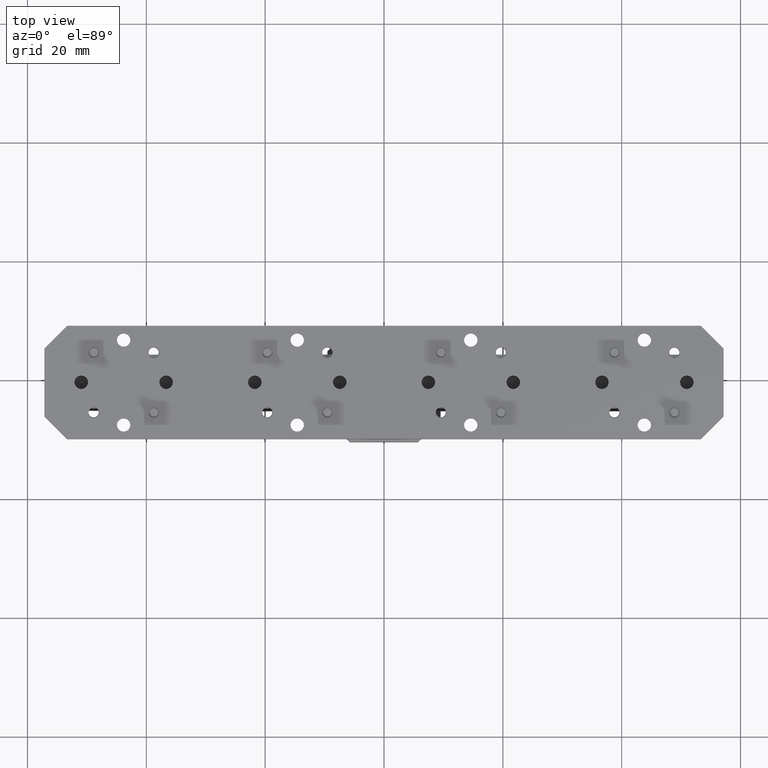
[diagram: clean part render]
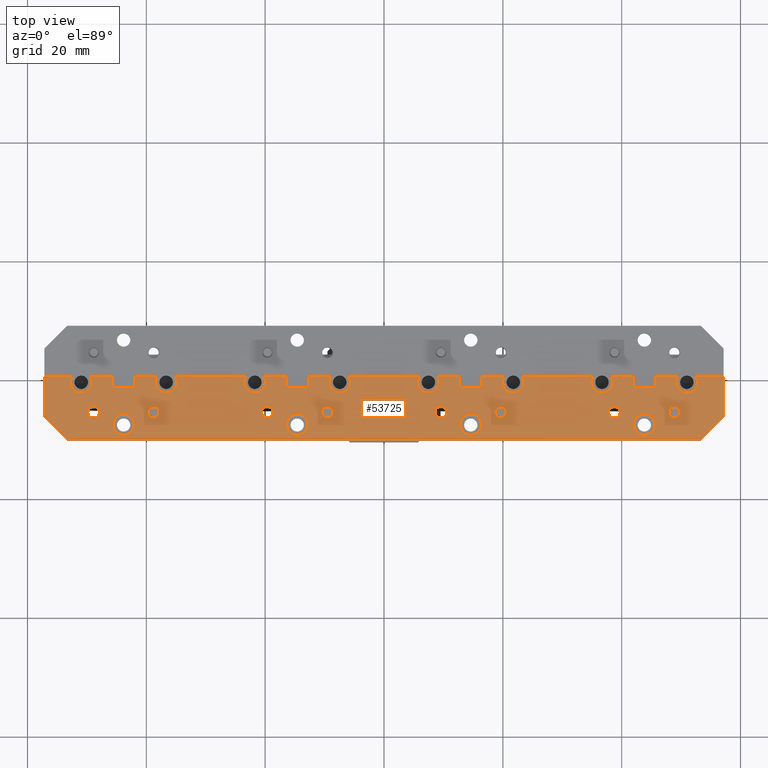
[diagram: same view with one face highlighted and labeled with its STEP entity id]
A machine part, top view. The second image highlights one B-rep face of the part: STEP entity #53725.
In plain terms, the highlighted planar face has unit normal (0, 0, -1).
Its self-contained STEP definition (entity closure, byte-faithful):
#285 = VERTEX_POINT ( 'NONE', #49331 ) ;
#674 = ORIENTED_EDGE ( 'NONE', *, *, #63357, .F. ) ;
#1216 = EDGE_CURVE ( 'NONE', #46304, #43998, #22321, .T. ) ;
#1408 = EDGE_LOOP ( 'NONE', ( #104949, #64936 ) ) ;
#1516 = ORIENTED_EDGE ( 'NONE', *, *, #1216, .F. ) ;
#1649 = CARTESIAN_POINT ( 'NONE',  ( -1.526126217791283300, -0.2358737822087165200, 0.3750000000000000600 ) ) ;
#2426 = AXIS2_PLACEMENT_3D ( 'NONE', #33807, #92321, #42295 ) ;
#2464 = CARTESIAN_POINT ( 'NONE',  ( 2.099999999999999200, -0.4119999999999999800, 0.3750000000000011700 ) ) ;
#2634 = EDGE_CURVE ( 'NONE', #4203, #41469, #84384, .T. ) ;
#2714 = DIRECTION ( 'NONE',  ( -1.000000000000000000, 1.387778780781436600E-017, -5.238713128116976100E-016 ) ) ;
#2931 = DIRECTION ( 'NONE',  ( 5.238713128116976100E-016, 1.793325502432245100E-032, -1.000000000000000000 ) ) ;
#3078 = VERTEX_POINT ( 'NONE', #93528 ) ;
#3180 = CARTESIAN_POINT ( 'NONE',  ( -0.2937499999999998400, -0.03699999999999999100, 0.3750000000000000600 ) ) ;
#3289 = AXIS2_PLACEMENT_3D ( 'NONE', #96849, #46986, #105064 ) ;
#3460 = VERTEX_POINT ( 'NONE', #75538 ) ;
#3772 = EDGE_CURVE ( 'NONE', #30796, #95548, #81268, .T. ) ;
#3989 = DIRECTION ( 'NONE',  ( -1.000000000000000000, 1.387778780781436600E-017, -5.238713128116976100E-016 ) ) ;
#4003 = CARTESIAN_POINT ( 'NONE',  ( 2.006249999999999600, -0.03700000000000002600, 0.3750000000000000600 ) ) ;
#4091 = EDGE_CURVE ( 'NONE', #52423, #99117, #41979, .T. ) ;
#4151 = CARTESIAN_POINT ( 'NONE',  ( 2.249999999999999100, -0.2070000000000000500, 0.3750000000000012800 ) ) ;
#4203 = VERTEX_POINT ( 'NONE', #27884 ) ;
#4238 = VECTOR ( 'NONE', #44549, 39.37007874015748100 ) ;
#4402 = CARTESIAN_POINT ( 'NONE',  ( -1.923873782208716400, -0.2358737822087165200, 0.3750000000000001100 ) ) ;
#4869 = EDGE_CURVE ( 'NONE', #20016, #10894, #20271, .T. ) ;
#4972 = VERTEX_POINT ( 'NONE', #99426 ) ;
#4984 = AXIS2_PLACEMENT_3D ( 'NONE', #44931, #103111, #53392 ) ;
#5085 = LINE ( 'NONE', #52920, #69496 ) ;
#5538 = EDGE_CURVE ( 'NONE', #30723, #100595, #55519, .T. ) ;
#5692 = CARTESIAN_POINT ( 'NONE',  ( -0.3761262177912831900, -0.2358737822087165500, 0.3750000000000000600 ) ) ;
#5924 = VERTEX_POINT ( 'NONE', #95134 ) ;
#5949 = VERTEX_POINT ( 'NONE', #93395 ) ;
#6368 = ORIENTED_EDGE ( 'NONE', *, *, #37809, .T. ) ;
#6575 = CIRCLE ( 'NONE', #105094, 0.07000000000000028400 ) ;
#6732 = CIRCLE ( 'NONE', #103226, 0.03850000000000001300 ) ;
#6954 = FACE_BOUND ( 'NONE', #15506, .T. ) ;
#6977 = DIRECTION ( 'NONE',  ( -1.000000000000000000, -4.380481340975877600E-017, -4.024558464266192500E-016 ) ) ;
#7407 = DIRECTION ( 'NONE',  ( 0.0000000000000000000, 1.181810295980568600E-034, 1.000000000000000000 ) ) ;
#7490 = VECTOR ( 'NONE', #82991, 39.37007874015748100 ) ;
#7627 = AXIS2_PLACEMENT_3D ( 'NONE', #71674, #21226, #79959 ) ;
#7700 = CIRCLE ( 'NONE', #87747, 0.06999999999999996500 ) ;
#7826 = CARTESIAN_POINT ( 'NONE',  ( -1.651000000000001400, 4.102575840552299100E-017, 0.3749999999999993900 ) ) ;
#7916 = CIRCLE ( 'NONE', #30810, 0.03850000000000015200 ) ;
#8294 = CARTESIAN_POINT ( 'NONE',  ( 1.443749999999999900, -0.03700000000000004000, 0.3750000000000000600 ) ) ;
#8672 = CARTESIAN_POINT ( 'NONE',  ( 1.923873782208716400, -0.2358737822087162200, 0.3750000000000000600 ) ) ;
#8780 = DIRECTION ( 'NONE',  ( 0.0000000000000000000, 6.795409201888139400E-034, 1.000000000000000000 ) ) ;
#8881 = CARTESIAN_POINT ( 'NONE',  ( 0.7738737822087168300, -0.2358737822087164900, 0.3750000000000000600 ) ) ;
#9046 = EDGE_CURVE ( 'NONE', #54371, #47153, #60784, .T. ) ;
#9229 = VECTOR ( 'NONE', #13543, 39.37007874015748100 ) ;
#9283 = ORIENTED_EDGE ( 'NONE', *, *, #30768, .T. ) ;
#9529 = EDGE_CURVE ( 'NONE', #9558, #47711, #77606, .T. ) ;
#9554 = FACE_BOUND ( 'NONE', #60150, .T. ) ;
#9558 = VERTEX_POINT ( 'NONE', #61344 ) ;
#9664 = CARTESIAN_POINT ( 'NONE',  ( 1.724999999999999900, -0.3182499999999998700, 0.3750000000000000600 ) ) ;
#9846 = EDGE_CURVE ( 'NONE', #57153, #91163, #81274, .T. ) ;
#10064 = DIRECTION ( 'NONE',  ( 1.000000000000000000, 0.0000000000000000000, 0.0000000000000000000 ) ) ;
#10255 = CARTESIAN_POINT ( 'NONE',  ( -1.384327781933017800, 2.051791351709880000E-017, 0.3750000000000000600 ) ) ;
#10285 = CARTESIAN_POINT ( 'NONE',  ( -1.799000000000001300, 2.496614026625805000E-017, 0.3749999999999993300 ) ) ;
#10317 = EDGE_CURVE ( 'NONE', #10894, #20016, #14180, .T. ) ;
#10375 = CARTESIAN_POINT ( 'NONE',  ( 1.651000000000000700, -0.07400000000000001000, 0.3750000000000007800 ) ) ;
#10605 = PLANE ( 'NONE',  #11675 ) ;
#10619 = CARTESIAN_POINT ( 'NONE',  ( -1.513750000000000200, -0.03699999999999996300, 0.3750000000000000600 ) ) ;
#10640 = CARTESIAN_POINT ( 'NONE',  ( 1.936249999999999400, -0.03700000000000001900, 0.3750000000000000600 ) ) ;
#10834 = CARTESIAN_POINT ( 'NONE',  ( 0.6489999999999995800, -9.006684287271527300E-018, 0.3750000000000003900 ) ) ;
#10878 = DIRECTION ( 'NONE',  ( 0.7071067811865462400, 0.7071067811865487900, 3.704329577582497900E-016 ) ) ;
#10888 = CARTESIAN_POINT ( 'NONE',  ( 0.8562500000000000700, -0.03700000000000000500, 0.3750000000000000600 ) ) ;
#10894 = VERTEX_POINT ( 'NONE', #48071 ) ;
#11199 = AXIS2_PLACEMENT_3D ( 'NONE', #62522, #12208, #71023 ) ;
#11516 = CARTESIAN_POINT ( 'NONE',  ( -1.490376217791283200, -0.2358737822087165200, 0.3750000000000000600 ) ) ;
#11567 = DIRECTION ( 'NONE',  ( 1.000000000000000000, 0.0000000000000000000, 0.0000000000000000000 ) ) ;
#11587 = VECTOR ( 'NONE', #83414, 39.37007874015748100 ) ;
#11675 = AXIS2_PLACEMENT_3D ( 'NONE', #53124, #2931, #61621 ) ;
#11831 = CARTESIAN_POINT ( 'NONE',  ( 1.654999999999999800, -0.3182499999999998700, 0.3750000000000000600 ) ) ;
#12030 = DIRECTION ( 'NONE',  ( 0.0000000000000000000, 3.545430887941651100E-034, 1.000000000000000000 ) ) ;
#12036 = VERTEX_POINT ( 'NONE', #23124 ) ;
#12194 = CIRCLE ( 'NONE', #42474, 0.07000000000000028400 ) ;
#12208 = DIRECTION ( 'NONE',  ( 0.0000000000000000000, 5.613598905907598200E-034, 1.000000000000000000 ) ) ;
#12244 = CARTESIAN_POINT ( 'NONE',  ( -1.655000000000000000, -0.3182499999999998100, 0.3750000000000000600 ) ) ;
#12258 = CARTESIAN_POINT ( 'NONE',  ( -0.2343277819330175600, 3.443863556697161900E-018, 0.3750000000000000600 ) ) ;
#12294 = ORIENTED_EDGE ( 'NONE', *, *, #51262, .F. ) ;
#12388 = DIRECTION ( 'NONE',  ( 1.000000000000000000, 0.0000000000000000000, 0.0000000000000000000 ) ) ;
#12743 = DIRECTION ( 'NONE',  ( 1.000000000000000000, 0.0000000000000000000, 0.0000000000000000000 ) ) ;
#12930 = VERTEX_POINT ( 'NONE', #46562 ) ;
#13309 = EDGE_LOOP ( 'NONE', ( #42255, #72495 ) ) ;
#13490 = EDGE_CURVE ( 'NONE', #49502, #38169, #66804, .T. ) ;
#13543 = DIRECTION ( 'NONE',  ( 1.387778780781436600E-017, 1.000000000000000000, 2.759659579148537200E-032 ) ) ;
#13624 = CARTESIAN_POINT ( 'NONE',  ( 0.3761262177912837500, -0.2358737822087165200, 0.3750000000000001100 ) ) ;
#13651 = EDGE_CURVE ( 'NONE', #17783, #20569, #42960, .T. ) ;
#13657 = CARTESIAN_POINT ( 'NONE',  ( 1.526126217791283300, -0.2358737822087163300, 0.3750000000000001100 ) ) ;
#13932 = CIRCLE ( 'NONE', #2426, 0.07000000000000007600 ) ;
#13934 = CARTESIAN_POINT ( 'NONE',  ( 0.5750000000000000700, -0.3182500000000000900, 0.3750000000000000600 ) ) ;
#14015 = DIRECTION ( 'NONE',  ( 1.000000000000000000, 0.0000000000000000000, 0.0000000000000000000 ) ) ;
#14180 = CIRCLE ( 'NONE', #106076, 0.07000000000000007600 ) ;
#14376 = CARTESIAN_POINT ( 'NONE',  ( -2.250000000000001300, 3.122502256758232400E-017, 0.3749999999999989500 ) ) ;
#14511 = AXIS2_PLACEMENT_3D ( 'NONE', #18401, #77166, #26849 ) ;
#14650 = VERTEX_POINT ( 'NONE', #50648 ) ;
#14894 = VERTEX_POINT ( 'NONE', #62382 ) ;
#15038 = CARTESIAN_POINT ( 'NONE',  ( 1.503172218066982400, -2.216721138390531600E-017, 0.3750000000000000600 ) ) ;
#15382 = EDGE_CURVE ( 'NONE', #71381, #12930, #6732, .T. ) ;
#15412 = CARTESIAN_POINT ( 'NONE',  ( 0.2937499999999999600, -0.03700000000000000500, 0.3750000000000000600 ) ) ;
#15506 = EDGE_LOOP ( 'NONE', ( #60551, #1516 ) ) ;
#15593 = EDGE_CURVE ( 'NONE', #4972, #23471, #100646, .T. ) ;
#15629 = CARTESIAN_POINT ( 'NONE',  ( -2.250000000000001300, 3.122502256758232400E-017, 0.3749999999999989500 ) ) ;
#15723 = CIRCLE ( 'NONE', #94996, 0.07000000000000007600 ) ;
#16070 = ORIENTED_EDGE ( 'NONE', *, *, #88137, .F. ) ;
#16168 = DIRECTION ( 'NONE',  ( 1.387778780781436600E-017, 1.000000000000000000, 2.759659579148515300E-032 ) ) ;
#16409 = EDGE_CURVE ( 'NONE', #3078, #91220, #82413, .T. ) ;
#16417 = DIRECTION ( 'NONE',  ( 0.0000000000000000000, 1.772715443970839200E-034, 1.000000000000000000 ) ) ;
#16510 = AXIS2_PLACEMENT_3D ( 'NONE', #3180, #61868, #11567 ) ;
#16639 = DIRECTION ( 'NONE',  ( 1.000000000000000000, 0.0000000000000000000, 0.0000000000000000000 ) ) ;
#16807 = VERTEX_POINT ( 'NONE', #14376 ) ;
#16808 = ORIENTED_EDGE ( 'NONE', *, *, #84715, .T. ) ;
#17097 = ORIENTED_EDGE ( 'NONE', *, *, #9529, .F. ) ;
#17235 = DIRECTION ( 'NONE',  ( 1.000000000000000000, 0.0000000000000000000, 0.0000000000000000000 ) ) ;
#17294 = CARTESIAN_POINT ( 'NONE',  ( -0.8562499999999999600, -0.03699999999999999100, 0.3750000000000000600 ) ) ;
#17472 = DIRECTION ( 'NONE',  ( -1.387778780781436600E-017, -1.000000000000000000, -2.759659579148537200E-032 ) ) ;
#17573 = VERTEX_POINT ( 'NONE', #67432 ) ;
#17783 = VERTEX_POINT ( 'NONE', #78257 ) ;
#18019 = DIRECTION ( 'NONE',  ( 1.000000000000000000, 0.0000000000000000000, 0.0000000000000000000 ) ) ;
#18085 = CARTESIAN_POINT ( 'NONE',  ( -0.2937499999999998400, -0.03699999999999999100, 0.3750000000000000600 ) ) ;
#18118 = DIRECTION ( 'NONE',  ( 0.0000000000000000000, 3.545430887941651100E-034, 1.000000000000000000 ) ) ;
#18264 = ORIENTED_EDGE ( 'NONE', *, *, #20021, .F. ) ;
#18401 = CARTESIAN_POINT ( 'NONE',  ( -1.526126217791283300, -0.2358737822087165200, 0.3750000000000000600 ) ) ;
#18548 = ORIENTED_EDGE ( 'NONE', *, *, #85511, .F. ) ;
#18629 = VERTEX_POINT ( 'NONE', #48956 ) ;
#18639 = VECTOR ( 'NONE', #62293, 39.37007874015748100 ) ;
#18807 = ORIENTED_EDGE ( 'NONE', *, *, #87707, .F. ) ;
#18859 = AXIS2_PLACEMENT_3D ( 'NONE', #42735, #100994, #51202 ) ;
#19205 = VERTEX_POINT ( 'NONE', #32578 ) ;
#19264 = DIRECTION ( 'NONE',  ( 1.000000000000000000, 0.0000000000000000000, 0.0000000000000000000 ) ) ;
#19327 = EDGE_LOOP ( 'NONE', ( #76405, #98263 ) ) ;
#19590 = AXIS2_PLACEMENT_3D ( 'NONE', #46704, #104799, #55150 ) ;
#19719 = VECTOR ( 'NONE', #10878, 39.37007874015748100 ) ;
#19895 = DIRECTION ( 'NONE',  ( 0.0000000000000000000, 6.499956627893004100E-034, 1.000000000000000000 ) ) ;
#19917 = ORIENTED_EDGE ( 'NONE', *, *, #26335, .F. ) ;
#20016 = VERTEX_POINT ( 'NONE', #12244 ) ;
#20021 = EDGE_CURVE ( 'NONE', #69525, #83329, #23105, .T. ) ;
#20235 = ORIENTED_EDGE ( 'NONE', *, *, #9046, .F. ) ;
#20246 = CARTESIAN_POINT ( 'NONE',  ( 1.564626217791283300, -0.2358737822087163300, 0.3750000000000001100 ) ) ;
#20271 = CIRCLE ( 'NONE', #49014, 0.07000000000000007600 ) ;
#20464 = CARTESIAN_POINT ( 'NONE',  ( -0.6449999999999998000, -0.3182500000000000300, 0.3750000000000000600 ) ) ;
#20501 = EDGE_CURVE ( 'NONE', #18629, #57734, #30906, .T. ) ;
#20569 = VERTEX_POINT ( 'NONE', #54633 ) ;
#20703 = LINE ( 'NONE', #27298, #62834 ) ;
#21226 = DIRECTION ( 'NONE',  ( 0.0000000000000000000, 5.909051479902979800E-035, 1.000000000000000000 ) ) ;
#21538 = CARTESIAN_POINT ( 'NONE',  ( -2.250000000000001300, 3.122502256758232400E-017, 0.3749999999999989500 ) ) ;
#21809 = LINE ( 'NONE', #86363, #107890 ) ;
#21868 = CIRCLE ( 'NONE', #90301, 0.03575000000000002500 ) ;
#21917 = DIRECTION ( 'NONE',  ( -1.000000000000000000, 1.387778780781436600E-017, -5.238713128116976100E-016 ) ) ;
#21935 = VECTOR ( 'NONE', #105941, 39.37007874015748100 ) ;
#21951 = VERTEX_POINT ( 'NONE', #44848 ) ;
#22011 = DIRECTION ( 'NONE',  ( 1.000000000000000000, 0.0000000000000000000, 0.0000000000000000000 ) ) ;
#22039 = DIRECTION ( 'NONE',  ( 1.000000000000000000, 0.0000000000000000000, 0.0000000000000000000 ) ) ;
#22103 = AXIS2_PLACEMENT_3D ( 'NONE', #28344, #86890, #36767 ) ;
#22320 = CARTESIAN_POINT ( 'NONE',  ( 1.959623782208716400, -0.2358737822087162200, 0.3750000000000000600 ) ) ;
#22321 = CIRCLE ( 'NONE', #104148, 0.03575000000000002500 ) ;
#22343 = LINE ( 'NONE', #2464, #19719 ) ;
#22456 = CARTESIAN_POINT ( 'NONE',  ( 1.923873782208716400, -0.2358737822087162200, 0.3750000000000000600 ) ) ;
#22876 = CIRCLE ( 'NONE', #48688, 0.07000000000000034000 ) ;
#22956 = VERTEX_POINT ( 'NONE', #79363 ) ;
#23105 = CIRCLE ( 'NONE', #36868, 0.07000000000000034000 ) ;
#23124 = CARTESIAN_POINT ( 'NONE',  ( 1.946827781933017100, -2.905493849729962300E-017, 0.3750000000000000600 ) ) ;
#23191 = ORIENTED_EDGE ( 'NONE', *, *, #66022, .F. ) ;
#23471 = VERTEX_POINT ( 'NONE', #61011 ) ;
#23536 = CARTESIAN_POINT ( 'NONE',  ( -1.725000000000000100, -0.3182499999999998100, 0.3750000000000000600 ) ) ;
#23541 = CARTESIAN_POINT ( 'NONE',  ( 1.651000000000000700, -4.798696935880069500E-018, 0.3750000000000007800 ) ) ;
#23646 = DIRECTION ( 'NONE',  ( 0.0000000000000000000, 2.068168017965974500E-034, 1.000000000000000000 ) ) ;
#23663 = VERTEX_POINT ( 'NONE', #82450 ) ;
#23738 = ORIENTED_EDGE ( 'NONE', *, *, #76854, .T. ) ;
#23860 = DIRECTION ( 'NONE',  ( 1.000000000000000000, 0.0000000000000000000, 0.0000000000000000000 ) ) ;
#24149 = EDGE_LOOP ( 'NONE', ( #12294, #79220 ) ) ;
#24167 = LINE ( 'NONE', #67247, #85713 ) ;
#24347 = LINE ( 'NONE', #106196, #44022 ) ;
#24379 = CARTESIAN_POINT ( 'NONE',  ( 1.651000000000000700, -4.798696935880069500E-018, 0.3750000000000007800 ) ) ;
#24586 = EDGE_CURVE ( 'NONE', #14650, #57153, #74885, .T. ) ;
#24615 = EDGE_CURVE ( 'NONE', #81624, #63576, #7916, .T. ) ;
#24814 = CARTESIAN_POINT ( 'NONE',  ( -0.7738737822087168300, -0.2358737822087166000, 0.3750000000000001100 ) ) ;
#24977 = VECTOR ( 'NONE', #3989, 39.37007874015748100 ) ;
#25075 = EDGE_CURVE ( 'NONE', #47372, #95548, #27311, .T. ) ;
#25090 = AXIS2_PLACEMENT_3D ( 'NONE', #4003, #62696, #12388 ) ;
#25127 = CARTESIAN_POINT ( 'NONE',  ( -2.100000000000001000, -0.4119999999999999800, 0.3749999999999990000 ) ) ;
#25341 = ORIENTED_EDGE ( 'NONE', *, *, #105447, .F. ) ;
#25386 = LINE ( 'NONE', #57183, #89489 ) ;
#25413 = AXIS2_PLACEMENT_3D ( 'NONE', #1649, #60330, #10064 ) ;
#25581 = EDGE_CURVE ( 'NONE', #47676, #99314, #96304, .T. ) ;
#25764 = DIRECTION ( 'NONE',  ( 1.000000000000000000, 0.0000000000000000000, 0.0000000000000000000 ) ) ;
#25927 = CARTESIAN_POINT ( 'NONE',  ( 0.2237499999999997000, -0.03699999999999999800, 0.3750000000000000600 ) ) ;
#26335 = EDGE_CURVE ( 'NONE', #57297, #92486, #67458, .T. ) ;
#26369 = EDGE_CURVE ( 'NONE', #87307, #285, #29135, .T. ) ;
#26538 = CIRCLE ( 'NONE', #4984, 0.03850000000000001300 ) ;
#26569 = DIRECTION ( 'NONE',  ( 1.000000000000000000, 0.0000000000000000000, 0.0000000000000000000 ) ) ;
#26621 = CIRCLE ( 'NONE', #3289, 0.03575000000000002500 ) ;
#26849 = DIRECTION ( 'NONE',  ( 1.000000000000000000, 0.0000000000000000000, 0.0000000000000000000 ) ) ;
#27121 = ORIENTED_EDGE ( 'NONE', *, *, #48245, .F. ) ;
#27298 = CARTESIAN_POINT ( 'NONE',  ( -0.5009999999999998900, 2.507754431909582200E-017, 0.3749999999999998900 ) ) ;
#27311 = CIRCLE ( 'NONE', #47116, 0.07000000000000034000 ) ;
#27640 = CARTESIAN_POINT ( 'NONE',  ( -0.8562499999999999600, -0.03699999999999999100, 0.3750000000000000600 ) ) ;
#27668 = CARTESIAN_POINT ( 'NONE',  ( -1.651000000000001400, 4.102575840552299100E-017, 0.3749999999999993900 ) ) ;
#27737 = ORIENTED_EDGE ( 'NONE', *, *, #32710, .T. ) ;
#27854 = ORIENTED_EDGE ( 'NONE', *, *, #2634, .T. ) ;
#27884 = CARTESIAN_POINT ( 'NONE',  ( 0.5009999999999995600, 1.117200093566598900E-017, 0.3750000000000002800 ) ) ;
#28160 = DIRECTION ( 'NONE',  ( -1.000000000000000000, 1.387778780781436600E-017, -5.238713128116976100E-016 ) ) ;
#28344 = CARTESIAN_POINT ( 'NONE',  ( -0.5749999999999998400, -0.3182500000000000300, 0.3750000000000000600 ) ) ;
#28441 = DIRECTION ( 'NONE',  ( 1.000000000000000000, 4.380481340975880100E-017, 4.024558464266192500E-016 ) ) ;
#28519 = EDGE_CURVE ( 'NONE', #14894, #41936, #107733, .T. ) ;
#28857 = ORIENTED_EDGE ( 'NONE', *, *, #16409, .T. ) ;
#28925 = CARTESIAN_POINT ( 'NONE',  ( -1.923873782208716400, -0.2358737822087165200, 0.3750000000000001100 ) ) ;
#29050 = DIRECTION ( 'NONE',  ( -1.000000000000000000, 1.387778780781436600E-017, -5.238713128116976100E-016 ) ) ;
#29126 = FACE_BOUND ( 'NONE', #13309, .T. ) ;
#29135 = CIRCLE ( 'NONE', #41599, 0.07000000000000021500 ) ;
#29188 = EDGE_CURVE ( 'NONE', #20569, #69525, #97876, .T. ) ;
#29431 = CARTESIAN_POINT ( 'NONE',  ( -1.799000000000001300, 2.496614026625805000E-017, 0.3749999999999993300 ) ) ;
#29573 = DIRECTION ( 'NONE',  ( 0.0000000000000000000, 2.363620591961109800E-034, 1.000000000000000000 ) ) ;
#29819 = EDGE_CURVE ( 'NONE', #285, #9558, #54712, .T. ) ;
#30006 = ORIENTED_EDGE ( 'NONE', *, *, #13651, .F. ) ;
#30173 = LINE ( 'NONE', #45749, #24977 ) ;
#30330 = EDGE_CURVE ( 'NONE', #43998, #46304, #55802, .T. ) ;
#30440 = ORIENTED_EDGE ( 'NONE', *, *, #31445, .T. ) ;
#30596 = AXIS2_PLACEMENT_3D ( 'NONE', #5692, #64403, #14015 ) ;
#30723 = VERTEX_POINT ( 'NONE', #70616 ) ;
#30768 = EDGE_CURVE ( 'NONE', #65564, #30796, #107560, .T. ) ;
#30788 = CARTESIAN_POINT ( 'NONE',  ( 2.249999999999999100, -0.2619999999999997300, 0.3750000000000012800 ) ) ;
#30796 = VERTEX_POINT ( 'NONE', #38093 ) ;
#30810 = AXIS2_PLACEMENT_3D ( 'NONE', #13657, #72482, #22039 ) ;
#30892 = DIRECTION ( 'NONE',  ( 1.000000000000000000, 0.0000000000000000000, 0.0000000000000000000 ) ) ;
#30906 = CIRCLE ( 'NONE', #36217, 0.03850000000000015200 ) ;
#30938 = CIRCLE ( 'NONE', #97166, 0.07000000000000007600 ) ;
#31387 = ORIENTED_EDGE ( 'NONE', *, *, #33360, .F. ) ;
#31445 = EDGE_CURVE ( 'NONE', #42698, #42306, #107269, .T. ) ;
#31564 = DIRECTION ( 'NONE',  ( -1.000000000000000000, 1.387778780781436600E-017, -5.238713128116976100E-016 ) ) ;
#31592 = ORIENTED_EDGE ( 'NONE', *, *, #72254, .T. ) ;
#31762 = FACE_BOUND ( 'NONE', #24149, .T. ) ;
#31814 = ORIENTED_EDGE ( 'NONE', *, *, #94949, .F. ) ;
#31959 = DIRECTION ( 'NONE',  ( 1.000000000000000000, 0.0000000000000000000, 0.0000000000000000000 ) ) ;
#32578 = CARTESIAN_POINT ( 'NONE',  ( -0.7353737822087168500, -0.2358737822087166000, 0.3750000000000001100 ) ) ;
#32665 = ORIENTED_EDGE ( 'NONE', *, *, #91521, .T. ) ;
#32710 = EDGE_CURVE ( 'NONE', #52003, #48199, #103415, .T. ) ;
#32798 = DIRECTION ( 'NONE',  ( 1.387778780781436600E-017, 1.000000000000000000, 2.759659579148537200E-032 ) ) ;
#33187 = DIRECTION ( 'NONE',  ( 1.000000000000000000, 0.0000000000000000000, 0.0000000000000000000 ) ) ;
#33284 = DIRECTION ( 'NONE',  ( 1.000000000000000000, -7.156038902538751100E-017, 4.024558464266192500E-016 ) ) ;
#33360 = EDGE_CURVE ( 'NONE', #104219, #48199, #15723, .T. ) ;
#33419 = DIRECTION ( 'NONE',  ( 0.0000000000000000000, 2.954525739951626800E-035, 1.000000000000000000 ) ) ;
#33618 = CARTESIAN_POINT ( 'NONE',  ( 2.006249999999999600, -0.03700000000000002600, 0.3750000000000000600 ) ) ;
#33807 = CARTESIAN_POINT ( 'NONE',  ( -2.006250000000000100, -0.03699999999999997700, 0.3750000000000000600 ) ) ;
#33849 = CARTESIAN_POINT ( 'NONE',  ( 0.2343277819330173400, -3.443863556697151100E-018, 0.3750000000000000600 ) ) ;
#33863 = CARTESIAN_POINT ( 'NONE',  ( 1.799000000000000600, -2.496614026625806500E-017, 0.3750000000000008300 ) ) ;
#34017 = EDGE_CURVE ( 'NONE', #17783, #47711, #70711, .T. ) ;
#34164 = EDGE_CURVE ( 'NONE', #66034, #46421, #98991, .T. ) ;
#34184 = EDGE_CURVE ( 'NONE', #23471, #4972, #21868, .T. ) ;
#34227 = DIRECTION ( 'NONE',  ( -1.000000000000000000, 1.387778780781436600E-017, -5.238713128116976100E-016 ) ) ;
#34397 = FACE_BOUND ( 'NONE', #107424, .T. ) ;
#34529 = EDGE_CURVE ( 'NONE', #36579, #88972, #30938, .T. ) ;
#34656 = CARTESIAN_POINT ( 'NONE',  ( -0.6489999999999998000, 9.006684287271511900E-018, 0.3749999999999998300 ) ) ;
#34830 = CARTESIAN_POINT ( 'NONE',  ( 0.8562500000000000700, -0.03700000000000000500, 0.3750000000000000600 ) ) ;
#35158 = DIRECTION ( 'NONE',  ( 0.0000000000000000000, 2.954525739951380400E-034, 1.000000000000000000 ) ) ;
#35259 = ORIENTED_EDGE ( 'NONE', *, *, #25075, .F. ) ;
#35311 = DIRECTION ( 'NONE',  ( 1.387778780781436600E-017, 1.000000000000000000, 2.759659579148537200E-032 ) ) ;
#35476 = CARTESIAN_POINT ( 'NONE',  ( -2.250000000000001300, -0.2619999999999991200, 0.3749999999999989500 ) ) ;
#35526 = CARTESIAN_POINT ( 'NONE',  ( -0.7862499999999998900, -0.03699999999999999100, 0.3750000000000000600 ) ) ;
#35721 = ORIENTED_EDGE ( 'NONE', *, *, #4091, .T. ) ;
#36002 = ORIENTED_EDGE ( 'NONE', *, *, #34164, .F. ) ;
#36022 = ORIENTED_EDGE ( 'NONE', *, *, #38661, .F. ) ;
#36035 = DIRECTION ( 'NONE',  ( 1.000000000000000000, 0.0000000000000000000, 0.0000000000000000000 ) ) ;
#36212 = AXIS2_PLACEMENT_3D ( 'NONE', #66833, #16417, #75189 ) ;
#36217 = AXIS2_PLACEMENT_3D ( 'NONE', #28925, #87457, #37337 ) ;
#36439 = EDGE_CURVE ( 'NONE', #3460, #97325, #48938, .T. ) ;
#36466 = VECTOR ( 'NONE', #28441, 39.37007874015748100 ) ;
#36579 = VERTEX_POINT ( 'NONE', #11831 ) ;
#36767 = DIRECTION ( 'NONE',  ( 1.000000000000000000, 0.0000000000000000000, 0.0000000000000000000 ) ) ;
#36868 = AXIS2_PLACEMENT_3D ( 'NONE', #37463, #95874, #45973 ) ;
#37090 = VERTEX_POINT ( 'NONE', #35476 ) ;
#37337 = DIRECTION ( 'NONE',  ( 1.000000000000000000, 0.0000000000000000000, 0.0000000000000000000 ) ) ;
#37378 = ORIENTED_EDGE ( 'NONE', *, *, #71601, .F. ) ;
#37463 = CARTESIAN_POINT ( 'NONE',  ( 1.443749999999999900, -0.03700000000000004000, 0.3750000000000000600 ) ) ;
#37626 = VECTOR ( 'NONE', #92031, 39.37007874015748100 ) ;
#37749 = VECTOR ( 'NONE', #67465, 39.37007874015748100 ) ;
#37809 = EDGE_CURVE ( 'NONE', #37090, #38169, #104090, .T. ) ;
#38093 = CARTESIAN_POINT ( 'NONE',  ( 2.249999999999999100, -3.122502256758231800E-017, 0.3750000000000012800 ) ) ;
#38169 = VERTEX_POINT ( 'NONE', #97947 ) ;
#38320 = ORIENTED_EDGE ( 'NONE', *, *, #41765, .F. ) ;
#38661 = EDGE_CURVE ( 'NONE', #100595, #30723, #82273, .T. ) ;
#39300 = VECTOR ( 'NONE', #21917, 39.37007874015748100 ) ;
#39568 = VECTOR ( 'NONE', #75224, 39.37007874015748100 ) ;
#39890 = ORIENTED_EDGE ( 'NONE', *, *, #44811, .F. ) ;
#40149 = ORIENTED_EDGE ( 'NONE', *, *, #28519, .F. ) ;
#40562 = CARTESIAN_POINT ( 'NONE',  ( -0.5009999999999998900, 2.507754431909582200E-017, 0.3749999999999998900 ) ) ;
#40860 = CARTESIAN_POINT ( 'NONE',  ( 0.7968277819330175100, -1.198088853689797400E-017, 0.3750000000000000600 ) ) ;
#40971 = EDGE_CURVE ( 'NONE', #12036, #81458, #22876, .T. ) ;
#41045 = AXIS2_PLACEMENT_3D ( 'NONE', #4402, #63074, #12743 ) ;
#41469 = VERTEX_POINT ( 'NONE', #70077 ) ;
#41510 = CARTESIAN_POINT ( 'NONE',  ( -1.443750000000000100, -0.03699999999999997700, 0.3750000000000000600 ) ) ;
#41599 = AXIS2_PLACEMENT_3D ( 'NONE', #10888, #69731, #19264 ) ;
#41765 = EDGE_CURVE ( 'NONE', #96590, #69586, #55515, .T. ) ;
#41936 = VERTEX_POINT ( 'NONE', #10619 ) ;
#41979 = LINE ( 'NONE', #21538, #39300 ) ;
#42076 = EDGE_CURVE ( 'NONE', #57734, #18629, #103279, .T. ) ;
#42077 = EDGE_CURVE ( 'NONE', #47153, #54371, #105820, .T. ) ;
#42096 = DIRECTION ( 'NONE',  ( 1.000000000000000000, 0.0000000000000000000, 0.0000000000000000000 ) ) ;
#42150 = ORIENTED_EDGE ( 'NONE', *, *, #90751, .F. ) ;
#42175 = ORIENTED_EDGE ( 'NONE', *, *, #59660, .F. ) ;
#42255 = ORIENTED_EDGE ( 'NONE', *, *, #15593, .F. ) ;
#42295 = DIRECTION ( 'NONE',  ( 1.000000000000000000, 0.0000000000000000000, 0.0000000000000000000 ) ) ;
#42301 = ORIENTED_EDGE ( 'NONE', *, *, #57565, .F. ) ;
#42306 = VERTEX_POINT ( 'NONE', #40562 ) ;
#42474 = AXIS2_PLACEMENT_3D ( 'NONE', #15412, #74237, #23860 ) ;
#42698 = VERTEX_POINT ( 'NONE', #71999 ) ;
#42735 = CARTESIAN_POINT ( 'NONE',  ( 1.724999999999999900, -0.3182499999999998700, 0.3750000000000000600 ) ) ;
#42960 = CIRCLE ( 'NONE', #94178, 0.07000000000000034000 ) ;
#43034 = CARTESIAN_POINT ( 'NONE',  ( -0.5009999999999998900, -0.07399999999999999600, 0.3749999999999998900 ) ) ;
#43325 = DIRECTION ( 'NONE',  ( 1.000000000000000000, 0.0000000000000000000, 0.0000000000000000000 ) ) ;
#43884 = CARTESIAN_POINT ( 'NONE',  ( -2.065672218066982400, 3.070423636410613500E-017, 0.3750000000000000600 ) ) ;
#43998 = VERTEX_POINT ( 'NONE', #22320 ) ;
#44022 = VECTOR ( 'NONE', #65483, 39.37007874015748100 ) ;
#44028 = AXIS2_PLACEMENT_3D ( 'NONE', #34830, #93325, #43325 ) ;
#44549 = DIRECTION ( 'NONE',  ( -1.387778780781436600E-017, -1.000000000000000000, -2.759659579148537200E-032 ) ) ;
#44706 = ORIENTED_EDGE ( 'NONE', *, *, #26369, .F. ) ;
#44811 = EDGE_CURVE ( 'NONE', #107350, #50259, #81076, .T. ) ;
#44848 = CARTESIAN_POINT ( 'NONE',  ( 0.5009999999999995600, -0.07400000000000001000, 0.3750000000000002800 ) ) ;
#44931 = CARTESIAN_POINT ( 'NONE',  ( -0.7738737822087168300, -0.2358737822087166000, 0.3750000000000001100 ) ) ;
#45128 = ORIENTED_EDGE ( 'NONE', *, *, #10317, .F. ) ;
#45208 = CARTESIAN_POINT ( 'NONE',  ( 0.3761262177912837500, -0.2358737822087165200, 0.3750000000000001100 ) ) ;
#45474 = AXIS2_PLACEMENT_3D ( 'NONE', #24814, #83402, #33187 ) ;
#45529 = CARTESIAN_POINT ( 'NONE',  ( 1.799000000000000600, -0.07400000000000002400, 0.3750000000000008300 ) ) ;
#45641 = VERTEX_POINT ( 'NONE', #43884 ) ;
#45749 = CARTESIAN_POINT ( 'NONE',  ( -2.250000000000001300, 3.122502256758232400E-017, 0.3749999999999989500 ) ) ;
#45973 = DIRECTION ( 'NONE',  ( 1.000000000000000000, 0.0000000000000000000, 0.0000000000000000000 ) ) ;
#46290 = EDGE_LOOP ( 'NONE', ( #61717, #100562 ) ) ;
#46295 = CARTESIAN_POINT ( 'NONE',  ( 0.3637500000000002400, -0.03700000000000000500, 0.3750000000000000600 ) ) ;
#46304 = VERTEX_POINT ( 'NONE', #65497 ) ;
#46421 = VERTEX_POINT ( 'NONE', #107272 ) ;
#46531 = AXIS2_PLACEMENT_3D ( 'NONE', #45208, #103382, #53675 ) ;
#46562 = CARTESIAN_POINT ( 'NONE',  ( 0.3376262177912837100, -0.2358737822087165200, 0.3750000000000001100 ) ) ;
#46606 = ORIENTED_EDGE ( 'NONE', *, *, #5538, .F. ) ;
#46662 = LINE ( 'NONE', #49405, #66500 ) ;
#46671 = AXIS2_PLACEMENT_3D ( 'NONE', #85337, #35158, #93652 ) ;
#46693 = AXIS2_PLACEMENT_3D ( 'NONE', #79848, #29573, #88113 ) ;
#46704 = CARTESIAN_POINT ( 'NONE',  ( -2.006250000000000100, -0.03699999999999997700, 0.3750000000000000600 ) ) ;
#46986 = DIRECTION ( 'NONE',  ( 0.0000000000000000000, 6.204504053897868800E-034, 1.000000000000000000 ) ) ;
#47025 = ORIENTED_EDGE ( 'NONE', *, *, #85834, .T. ) ;
#47116 = AXIS2_PLACEMENT_3D ( 'NONE', #33618, #92131, #42096 ) ;
#47153 = VERTEX_POINT ( 'NONE', #20464 ) ;
#47372 = VERTEX_POINT ( 'NONE', #99284 ) ;
#47641 = DIRECTION ( 'NONE',  ( 0.0000000000000000000, 8.863577219854332900E-035, 1.000000000000000000 ) ) ;
#47676 = VERTEX_POINT ( 'NONE', #10375 ) ;
#47711 = VERTEX_POINT ( 'NONE', #77523 ) ;
#47727 = CIRCLE ( 'NONE', #14511, 0.03575000000000002500 ) ;
#47819 = DIRECTION ( 'NONE',  ( 0.0000000000000000000, 1.772715443970839200E-034, 1.000000000000000000 ) ) ;
#47913 = CARTESIAN_POINT ( 'NONE',  ( -2.250000000000001300, -0.4119999999999998700, 0.3749999999999989500 ) ) ;
#48071 = CARTESIAN_POINT ( 'NONE',  ( -1.795000000000000200, -0.3182499999999998100, 0.3750000000000000600 ) ) ;
#48199 = VERTEX_POINT ( 'NONE', #10255 ) ;
#48245 = EDGE_CURVE ( 'NONE', #41936, #104219, #102071, .T. ) ;
#48688 = AXIS2_PLACEMENT_3D ( 'NONE', #83637, #33419, #91946 ) ;
#48938 = CIRCLE ( 'NONE', #25413, 0.03575000000000002500 ) ;
#48956 = CARTESIAN_POINT ( 'NONE',  ( -1.962373782208716400, -0.2358737822087165200, 0.3750000000000001100 ) ) ;
#49003 = AXIS2_PLACEMENT_3D ( 'NONE', #99387, #49594, #107592 ) ;
#49008 = AXIS2_PLACEMENT_3D ( 'NONE', #8881, #67667, #17235 ) ;
#49014 = AXIS2_PLACEMENT_3D ( 'NONE', #59642, #89045, #89516 ) ;
#49142 = CARTESIAN_POINT ( 'NONE',  ( -2.250000000000001300, 3.122502256758232400E-017, 0.3749999999999989500 ) ) ;
#49331 = CARTESIAN_POINT ( 'NONE',  ( 0.7862499999999998900, -0.03699999999999999800, 0.3750000000000000600 ) ) ;
#49405 = CARTESIAN_POINT ( 'NONE',  ( -2.250000000000001300, -0.2069999999999999600, 0.3749999999999989500 ) ) ;
#49502 = VERTEX_POINT ( 'NONE', #97778 ) ;
#49556 = DIRECTION ( 'NONE',  ( 0.0000000000000000000, 1.181810295980568600E-034, 1.000000000000000000 ) ) ;
#49594 = DIRECTION ( 'NONE',  ( 0.0000000000000000000, 2.659073165956245100E-034, 1.000000000000000000 ) ) ;
#49722 = VERTEX_POINT ( 'NONE', #27668 ) ;
#49995 = DIRECTION ( 'NONE',  ( 1.000000000000000000, 0.0000000000000000000, 0.0000000000000000000 ) ) ;
#50259 = VERTEX_POINT ( 'NONE', #108166 ) ;
#50648 = CARTESIAN_POINT ( 'NONE',  ( -2.076249999999999900, -0.03699999999999996300, 0.3750000000000000600 ) ) ;
#50781 = VERTEX_POINT ( 'NONE', #43034 ) ;
#51059 = DIRECTION ( 'NONE',  ( -1.000000000000000000, 1.387778780781436600E-017, -5.238713128116976100E-016 ) ) ;
#51202 = DIRECTION ( 'NONE',  ( 1.000000000000000000, 0.0000000000000000000, 0.0000000000000000000 ) ) ;
#51262 = EDGE_CURVE ( 'NONE', #19205, #73587, #26538, .T. ) ;
#51515 = FACE_BOUND ( 'NONE', #19327, .T. ) ;
#51627 = EDGE_CURVE ( 'NONE', #99314, #83329, #21809, .T. ) ;
#52003 = VERTEX_POINT ( 'NONE', #59215 ) ;
#52092 = EDGE_CURVE ( 'NONE', #12930, #71381, #84651, .T. ) ;
#52146 = DIRECTION ( 'NONE',  ( 1.000000000000000000, 0.0000000000000000000, 0.0000000000000000000 ) ) ;
#52423 = VERTEX_POINT ( 'NONE', #33849 ) ;
#52920 = CARTESIAN_POINT ( 'NONE',  ( -2.250000000000001300, 3.122502256758232400E-017, 0.3749999999999989500 ) ) ;
#53077 = CARTESIAN_POINT ( 'NONE',  ( 0.4146262177912837200, -0.2358737822087165200, 0.3750000000000001100 ) ) ;
#53124 = CARTESIAN_POINT ( 'NONE',  ( -2.250000000000001300, -0.2069999999999999600, 0.3749999999999989500 ) ) ;
#53392 = DIRECTION ( 'NONE',  ( 1.000000000000000000, 0.0000000000000000000, 0.0000000000000000000 ) ) ;
#53675 = DIRECTION ( 'NONE',  ( 1.000000000000000000, 0.0000000000000000000, 0.0000000000000000000 ) ) ;
#53725 = ADVANCED_FACE ( 'NONE', ( #79060, #56798, #34397, #76485, #54141, #31762, #9554, #95773, #73930, #51515, #29126, #6954, #93234 ), #10605, .F. ) ;
#54141 = FACE_BOUND ( 'NONE', #1408, .T. ) ;
#54371 = VERTEX_POINT ( 'NONE', #81840 ) ;
#54443 = CIRCLE ( 'NONE', #46671, 0.07000000000000007600 ) ;
#54633 = CARTESIAN_POINT ( 'NONE',  ( 1.373749999999999600, -0.03700000000000003300, 0.3750000000000000600 ) ) ;
#54712 = CIRCLE ( 'NONE', #79979, 0.07000000000000021500 ) ;
#55150 = DIRECTION ( 'NONE',  ( 1.000000000000000000, 0.0000000000000000000, 0.0000000000000000000 ) ) ;
#55515 = CIRCLE ( 'NONE', #70016, 0.07000000000000028400 ) ;
#55519 = CIRCLE ( 'NONE', #70373, 0.07000000000000000700 ) ;
#55802 = CIRCLE ( 'NONE', #58417, 0.03575000000000002500 ) ;
#56103 = EDGE_CURVE ( 'NONE', #90504, #99117, #7700, .T. ) ;
#56414 = VECTOR ( 'NONE', #51059, 39.37007874015748100 ) ;
#56635 = ORIENTED_EDGE ( 'NONE', *, *, #96357, .T. ) ;
#56798 = FACE_BOUND ( 'NONE', #101146, .T. ) ;
#56888 = AXIS2_PLACEMENT_3D ( 'NONE', #17294, #76052, #25764 ) ;
#57153 = VERTEX_POINT ( 'NONE', #99240 ) ;
#57183 = CARTESIAN_POINT ( 'NONE',  ( 0.6489999999999995800, -0.07400000000000001000, 0.3750000000000003900 ) ) ;
#57297 = VERTEX_POINT ( 'NONE', #34656 ) ;
#57565 = EDGE_CURVE ( 'NONE', #22956, #90504, #72660, .T. ) ;
#57640 = CARTESIAN_POINT ( 'NONE',  ( 0.2937499999999999600, -0.03700000000000000500, 0.3750000000000000600 ) ) ;
#57734 = VERTEX_POINT ( 'NONE', #59869 ) ;
#58417 = AXIS2_PLACEMENT_3D ( 'NONE', #22456, #81139, #30892 ) ;
#59215 = CARTESIAN_POINT ( 'NONE',  ( -0.9156722180669824000, 1.363018640370448900E-017, 0.3750000000000000600 ) ) ;
#59270 = VECTOR ( 'NONE', #79697, 39.37007874015748100 ) ;
#59538 = EDGE_CURVE ( 'NONE', #17573, #5949, #95691, .T. ) ;
#59642 = CARTESIAN_POINT ( 'NONE',  ( -1.725000000000000100, -0.3182499999999998100, 0.3750000000000000600 ) ) ;
#59660 = EDGE_CURVE ( 'NONE', #67690, #107350, #103317, .T. ) ;
#59720 = LINE ( 'NONE', #7826, #101197 ) ;
#59869 = CARTESIAN_POINT ( 'NONE',  ( -1.885373782208716200, -0.2358737822087165200, 0.3750000000000001100 ) ) ;
#60150 = EDGE_LOOP ( 'NONE', ( #88186, #85619 ) ) ;
#60330 = DIRECTION ( 'NONE',  ( 0.0000000000000000000, 5.909051479902733500E-034, 1.000000000000000000 ) ) ;
#60551 = ORIENTED_EDGE ( 'NONE', *, *, #30330, .F. ) ;
#60784 = CIRCLE ( 'NONE', #22103, 0.07000000000000000700 ) ;
#61011 = CARTESIAN_POINT ( 'NONE',  ( 0.7381237822087167700, -0.2358737822087164900, 0.3750000000000000600 ) ) ;
#61344 = CARTESIAN_POINT ( 'NONE',  ( 0.9262500000000002400, -0.03700000000000000500, 0.3750000000000000600 ) ) ;
#61621 = DIRECTION ( 'NONE',  ( 1.000000000000000000, -1.387778780781436600E-017, 5.238713128116976100E-016 ) ) ;
#61717 = ORIENTED_EDGE ( 'NONE', *, *, #67031, .F. ) ;
#61828 = ORIENTED_EDGE ( 'NONE', *, *, #13490, .F. ) ;
#61868 = DIRECTION ( 'NONE',  ( 0.0000000000000000000, 2.659073165956245100E-034, 1.000000000000000000 ) ) ;
#62293 = DIRECTION ( 'NONE',  ( -1.000000000000000000, 1.387778780781436600E-017, -5.238713128116976100E-016 ) ) ;
#62347 = CARTESIAN_POINT ( 'NONE',  ( -1.443750000000000100, -0.03699999999999997700, 0.3750000000000000600 ) ) ;
#62382 = CARTESIAN_POINT ( 'NONE',  ( -1.503172218066982400, 2.216721138390531300E-017, 0.3750000000000000600 ) ) ;
#62416 = AXIS2_PLACEMENT_3D ( 'NONE', #74031, #23646, #82289 ) ;
#62441 = AXIS2_PLACEMENT_3D ( 'NONE', #27640, #86192, #36035 ) ;
#62476 = DIRECTION ( 'NONE',  ( -1.000000000000000000, 7.156038902538753600E-017, -4.024558464266192500E-016 ) ) ;
#62480 = AXIS2_PLACEMENT_3D ( 'NONE', #62347, #12030, #70841 ) ;
#62522 = CARTESIAN_POINT ( 'NONE',  ( 1.526126217791283300, -0.2358737822087163300, 0.3750000000000001100 ) ) ;
#62696 = DIRECTION ( 'NONE',  ( 0.0000000000000000000, 2.954525739951626800E-035, 1.000000000000000000 ) ) ;
#62829 = DIRECTION ( 'NONE',  ( 1.387778780781436600E-017, 1.000000000000000000, 2.759659579148537200E-032 ) ) ;
#62834 = VECTOR ( 'NONE', #35311, 39.37007874015748100 ) ;
#63074 = DIRECTION ( 'NONE',  ( 0.0000000000000000000, 4.727241183922192300E-034, 1.000000000000000000 ) ) ;
#63331 = CIRCLE ( 'NONE', #18859, 0.07000000000000007600 ) ;
#63357 = EDGE_CURVE ( 'NONE', #37090, #16807, #46662, .T. ) ;
#63576 = VERTEX_POINT ( 'NONE', #20246 ) ;
#63654 = VECTOR ( 'NONE', #62829, 39.37007874015748100 ) ;
#64036 = CARTESIAN_POINT ( 'NONE',  ( -2.250000000000001300, 3.122502256758232400E-017, 0.3749999999999989500 ) ) ;
#64403 = DIRECTION ( 'NONE',  ( 0.0000000000000000000, 6.204504053897868800E-034, 1.000000000000000000 ) ) ;
#64517 = CARTESIAN_POINT ( 'NONE',  ( 0.5050000000000000000, -0.3182500000000000900, 0.3750000000000000600 ) ) ;
#64936 = ORIENTED_EDGE ( 'NONE', *, *, #20501, .F. ) ;
#65483 = DIRECTION ( 'NONE',  ( -1.000000000000000000, 1.387778780781436600E-017, -5.238713128116976100E-016 ) ) ;
#65497 = CARTESIAN_POINT ( 'NONE',  ( 1.888123782208716200, -0.2358737822087162200, 0.3750000000000000600 ) ) ;
#65564 = VERTEX_POINT ( 'NONE', #30788 ) ;
#65877 = EDGE_CURVE ( 'NONE', #87307, #17573, #24347, .T. ) ;
#66022 = EDGE_CURVE ( 'NONE', #5924, #66034, #54443, .T. ) ;
#66034 = VERTEX_POINT ( 'NONE', #35526 ) ;
#66187 = DIRECTION ( 'NONE',  ( 1.000000000000000000, 0.0000000000000000000, 0.0000000000000000000 ) ) ;
#66500 = VECTOR ( 'NONE', #32798, 39.37007874015748100 ) ;
#66804 = LINE ( 'NONE', #47913, #21935 ) ;
#66833 = CARTESIAN_POINT ( 'NONE',  ( 0.5750000000000000700, -0.3182500000000000900, 0.3750000000000000600 ) ) ;
#67031 = EDGE_CURVE ( 'NONE', #97325, #3460, #47727, .T. ) ;
#67078 = DIRECTION ( 'NONE',  ( 0.0000000000000000000, 5.909051479902979800E-035, 1.000000000000000000 ) ) ;
#67190 = EDGE_CURVE ( 'NONE', #91220, #47676, #68812, .T. ) ;
#67234 = CARTESIAN_POINT ( 'NONE',  ( -2.250000000000001300, 3.122502256758232400E-017, 0.3749999999999989500 ) ) ;
#67247 = CARTESIAN_POINT ( 'NONE',  ( -0.6489999999999998000, -0.07399999999999999600, 0.3749999999999998300 ) ) ;
#67432 = CARTESIAN_POINT ( 'NONE',  ( 0.6489999999999995800, -9.006684287271527300E-018, 0.3750000000000003900 ) ) ;
#67458 = LINE ( 'NONE', #84845, #89411 ) ;
#67465 = DIRECTION ( 'NONE',  ( -1.387778780781436600E-017, -1.000000000000000000, -2.759659579148537200E-032 ) ) ;
#67667 = DIRECTION ( 'NONE',  ( 0.0000000000000000000, 6.499956627893004100E-034, 1.000000000000000000 ) ) ;
#67690 = VERTEX_POINT ( 'NONE', #10285 ) ;
#68285 = CARTESIAN_POINT ( 'NONE',  ( -2.250000000000001300, 3.122502256758232400E-017, 0.3749999999999989500 ) ) ;
#68474 = DIRECTION ( 'NONE',  ( 0.0000000000000000000, 1.477262869975703900E-034, 1.000000000000000000 ) ) ;
#68497 = EDGE_LOOP ( 'NONE', ( #18807, #83060 ) ) ;
#68571 = CARTESIAN_POINT ( 'NONE',  ( -1.443750000000000100, -0.03699999999999997700, 0.3750000000000000600 ) ) ;
#68812 = LINE ( 'NONE', #45529, #77827 ) ;
#68981 = CIRCLE ( 'NONE', #11199, 0.03850000000000015200 ) ;
#69311 = CARTESIAN_POINT ( 'NONE',  ( -0.2237499999999998900, -0.03699999999999999100, 0.3750000000000000600 ) ) ;
#69437 = EDGE_CURVE ( 'NONE', #45641, #16807, #5085, .T. ) ;
#69496 = VECTOR ( 'NONE', #2714, 39.37007874015748100 ) ;
#69525 = VERTEX_POINT ( 'NONE', #95127 ) ;
#69586 = VERTEX_POINT ( 'NONE', #46295 ) ;
#69731 = DIRECTION ( 'NONE',  ( 0.0000000000000000000, 8.863577219854332900E-035, 1.000000000000000000 ) ) ;
#70016 = AXIS2_PLACEMENT_3D ( 'NONE', #57640, #7407, #66187 ) ;
#70046 = CIRCLE ( 'NONE', #45474, 0.03850000000000001300 ) ;
#70077 = CARTESIAN_POINT ( 'NONE',  ( 0.3531722180669826200, -5.093161423503669100E-018, 0.3750000000000000600 ) ) ;
#70358 = CARTESIAN_POINT ( 'NONE',  ( 0.7738737822087168300, -0.2358737822087164900, 0.3750000000000000600 ) ) ;
#70373 = AXIS2_PLACEMENT_3D ( 'NONE', #13934, #47819, #52146 ) ;
#70616 = CARTESIAN_POINT ( 'NONE',  ( 0.6450000000000001300, -0.3182500000000000900, 0.3750000000000000600 ) ) ;
#70711 = LINE ( 'NONE', #84437, #90053 ) ;
#70841 = DIRECTION ( 'NONE',  ( 1.000000000000000000, 0.0000000000000000000, 0.0000000000000000000 ) ) ;
#70979 = VERTEX_POINT ( 'NONE', #80070 ) ;
#71023 = DIRECTION ( 'NONE',  ( 1.000000000000000000, 0.0000000000000000000, 0.0000000000000000000 ) ) ;
#71353 = ORIENTED_EDGE ( 'NONE', *, *, #9846, .F. ) ;
#71381 = VERTEX_POINT ( 'NONE', #53077 ) ;
#71561 = CARTESIAN_POINT ( 'NONE',  ( 1.799000000000000600, -0.07400000000000002400, 0.3750000000000008300 ) ) ;
#71601 = EDGE_CURVE ( 'NONE', #88972, #36579, #63331, .T. ) ;
#71674 = CARTESIAN_POINT ( 'NONE',  ( 1.443749999999999900, -0.03700000000000004000, 0.3750000000000000600 ) ) ;
#71999 = CARTESIAN_POINT ( 'NONE',  ( -0.3531722180669821800, 5.093161423503664500E-018, 0.3750000000000000600 ) ) ;
#72254 = EDGE_CURVE ( 'NONE', #21951, #4203, #95467, .T. ) ;
#72361 = CARTESIAN_POINT ( 'NONE',  ( 0.5009999999999995600, 1.117200093566598900E-017, 0.3750000000000002800 ) ) ;
#72448 = DIRECTION ( 'NONE',  ( 0.0000000000000000000, 5.318146331912462900E-034, 1.000000000000000000 ) ) ;
#72482 = DIRECTION ( 'NONE',  ( 0.0000000000000000000, 5.613598905907598200E-034, 1.000000000000000000 ) ) ;
#72489 = DIRECTION ( 'NONE',  ( -1.000000000000000000, 1.387778780781436600E-017, -5.238713128116976100E-016 ) ) ;
#72495 = ORIENTED_EDGE ( 'NONE', *, *, #34184, .F. ) ;
#72614 = ORIENTED_EDGE ( 'NONE', *, *, #80485, .T. ) ;
#72660 = CIRCLE ( 'NONE', #49003, 0.06999999999999996500 ) ;
#73587 = VERTEX_POINT ( 'NONE', #102336 ) ;
#73772 = ORIENTED_EDGE ( 'NONE', *, *, #24586, .F. ) ;
#73930 = FACE_BOUND ( 'NONE', #46290, .T. ) ;
#74031 = CARTESIAN_POINT ( 'NONE',  ( -2.006250000000000100, -0.03699999999999997700, 0.3750000000000000600 ) ) ;
#74237 = DIRECTION ( 'NONE',  ( 0.0000000000000000000, 1.181810295980568600E-034, 1.000000000000000000 ) ) ;
#74885 = CIRCLE ( 'NONE', #19590, 0.07000000000000007600 ) ;
#75189 = DIRECTION ( 'NONE',  ( 1.000000000000000000, 0.0000000000000000000, 0.0000000000000000000 ) ) ;
#75224 = DIRECTION ( 'NONE',  ( -1.000000000000000000, 1.387778780781436600E-017, -5.238713128116976100E-016 ) ) ;
#75491 = ORIENTED_EDGE ( 'NONE', *, *, #69437, .T. ) ;
#75538 = CARTESIAN_POINT ( 'NONE',  ( -1.561876217791283300, -0.2358737822087165200, 0.3750000000000000600 ) ) ;
#75751 = EDGE_CURVE ( 'NONE', #52423, #96590, #12194, .T. ) ;
#76052 = DIRECTION ( 'NONE',  ( 0.0000000000000000000, 2.954525739951380400E-034, 1.000000000000000000 ) ) ;
#76405 = ORIENTED_EDGE ( 'NONE', *, *, #92652, .F. ) ;
#76485 = FACE_BOUND ( 'NONE', #101181, .T. ) ;
#76771 = ORIENTED_EDGE ( 'NONE', *, *, #4869, .F. ) ;
#76854 = EDGE_CURVE ( 'NONE', #49502, #65564, #22343, .T. ) ;
#76856 = DIRECTION ( 'NONE',  ( 0.0000000000000000000, 2.659073165956245100E-034, 1.000000000000000000 ) ) ;
#76888 = DIRECTION ( 'NONE',  ( 1.000000000000000000, 0.0000000000000000000, 0.0000000000000000000 ) ) ;
#77080 = ORIENTED_EDGE ( 'NONE', *, *, #82825, .F. ) ;
#77166 = DIRECTION ( 'NONE',  ( 0.0000000000000000000, 5.909051479902733500E-034, 1.000000000000000000 ) ) ;
#77523 = CARTESIAN_POINT ( 'NONE',  ( 0.9156722180669826200, -1.363018640370449300E-017, 0.3750000000000000600 ) ) ;
#77606 = CIRCLE ( 'NONE', #44028, 0.07000000000000021500 ) ;
#77687 = ORIENTED_EDGE ( 'NONE', *, *, #65877, .T. ) ;
#77783 = VECTOR ( 'NONE', #31564, 39.37007874015748100 ) ;
#77827 = VECTOR ( 'NONE', #62476, 39.37007874015748100 ) ;
#78257 = CARTESIAN_POINT ( 'NONE',  ( 1.384327781933017300, -2.051791351709879700E-017, 0.3750000000000000600 ) ) ;
#78629 = DIRECTION ( 'NONE',  ( 1.000000000000000000, 0.0000000000000000000, 0.0000000000000000000 ) ) ;
#78741 = CARTESIAN_POINT ( 'NONE',  ( -1.799000000000001300, -0.07399999999999996900, 0.3749999999999993300 ) ) ;
#78978 = ORIENTED_EDGE ( 'NONE', *, *, #56103, .F. ) ;
#79060 = FACE_BOUND ( 'NONE', #107798, .T. ) ;
#79220 = ORIENTED_EDGE ( 'NONE', *, *, #107031, .F. ) ;
#79320 = ORIENTED_EDGE ( 'NONE', *, *, #40971, .F. ) ;
#79363 = CARTESIAN_POINT ( 'NONE',  ( -0.3637499999999998500, -0.03699999999999998400, 0.3750000000000000600 ) ) ;
#79697 = DIRECTION ( 'NONE',  ( -1.387778780781436600E-017, -1.000000000000000000, -2.759659579148537200E-032 ) ) ;
#79720 = ORIENTED_EDGE ( 'NONE', *, *, #25581, .T. ) ;
#79848 = CARTESIAN_POINT ( 'NONE',  ( -0.5749999999999998400, -0.3182500000000000300, 0.3750000000000000600 ) ) ;
#79959 = DIRECTION ( 'NONE',  ( 1.000000000000000000, 0.0000000000000000000, 0.0000000000000000000 ) ) ;
#79979 = AXIS2_PLACEMENT_3D ( 'NONE', #97435, #47641, #105681 ) ;
#80032 = ORIENTED_EDGE ( 'NONE', *, *, #29819, .F. ) ;
#80070 = CARTESIAN_POINT ( 'NONE',  ( -0.4118762177912831900, -0.2358737822087165500, 0.3750000000000000600 ) ) ;
#80073 = CARTESIAN_POINT ( 'NONE',  ( -1.799000000000001300, -0.07399999999999996900, 0.3749999999999993300 ) ) ;
#80243 = ORIENTED_EDGE ( 'NONE', *, *, #59538, .T. ) ;
#80339 = LINE ( 'NONE', #49142, #77783 ) ;
#80485 = EDGE_CURVE ( 'NONE', #67690, #91163, #30173, .T. ) ;
#81027 = LINE ( 'NONE', #64036, #97722 ) ;
#81076 = LINE ( 'NONE', #78741, #36466 ) ;
#81139 = DIRECTION ( 'NONE',  ( 0.0000000000000000000, 6.795409201888139400E-034, 1.000000000000000000 ) ) ;
#81268 = LINE ( 'NONE', #68285, #56414 ) ;
#81274 = CIRCLE ( 'NONE', #62416, 0.07000000000000007600 ) ;
#81458 = VERTEX_POINT ( 'NONE', #10640 ) ;
#81624 = VERTEX_POINT ( 'NONE', #95009 ) ;
#81840 = CARTESIAN_POINT ( 'NONE',  ( -0.5049999999999997800, -0.3182500000000000300, 0.3750000000000000600 ) ) ;
#82078 = CARTESIAN_POINT ( 'NONE',  ( 2.065672218066982400, -3.070423636410613500E-017, 0.3750000000000000600 ) ) ;
#82195 = DIRECTION ( 'NONE',  ( 0.0000000000000000000, 3.249978313946515700E-034, 1.000000000000000000 ) ) ;
#82273 = CIRCLE ( 'NONE', #36212, 0.07000000000000000700 ) ;
#82289 = DIRECTION ( 'NONE',  ( 1.000000000000000000, 0.0000000000000000000, 0.0000000000000000000 ) ) ;
#82326 = ORIENTED_EDGE ( 'NONE', *, *, #51627, .T. ) ;
#82343 = CIRCLE ( 'NONE', #16510, 0.06999999999999996500 ) ;
#82413 = LINE ( 'NONE', #33863, #37749 ) ;
#82450 = CARTESIAN_POINT ( 'NONE',  ( -0.3403762177912831900, -0.2358737822087165500, 0.3750000000000000600 ) ) ;
#82825 = EDGE_CURVE ( 'NONE', #45641, #14650, #13932, .T. ) ;
#82991 = DIRECTION ( 'NONE',  ( 1.387778780781436600E-017, 1.000000000000000000, 2.759659579148515300E-032 ) ) ;
#83060 = ORIENTED_EDGE ( 'NONE', *, *, #24615, .F. ) ;
#83329 = VERTEX_POINT ( 'NONE', #15038 ) ;
#83402 = DIRECTION ( 'NONE',  ( 0.0000000000000000000, 5.022693757917327600E-034, 1.000000000000000000 ) ) ;
#83414 = DIRECTION ( 'NONE',  ( -1.000000000000000000, 1.387778780781436600E-017, -5.238713128116976100E-016 ) ) ;
#83637 = CARTESIAN_POINT ( 'NONE',  ( 2.006249999999999600, -0.03700000000000002600, 0.3750000000000000600 ) ) ;
#84384 = LINE ( 'NONE', #104079, #106176 ) ;
#84437 = CARTESIAN_POINT ( 'NONE',  ( -2.250000000000001300, 3.122502256758232400E-017, 0.3749999999999989500 ) ) ;
#84651 = CIRCLE ( 'NONE', #46531, 0.03850000000000001300 ) ;
#84715 = EDGE_CURVE ( 'NONE', #14894, #49722, #80339, .T. ) ;
#84845 = CARTESIAN_POINT ( 'NONE',  ( -0.6489999999999998000, 9.006684287271511900E-018, 0.3749999999999998300 ) ) ;
#85188 = ORIENTED_EDGE ( 'NONE', *, *, #3772, .T. ) ;
#85334 = AXIS2_PLACEMENT_3D ( 'NONE', #68571, #18118, #76888 ) ;
#85337 = CARTESIAN_POINT ( 'NONE',  ( -0.8562499999999999600, -0.03699999999999999100, 0.3750000000000000600 ) ) ;
#85440 = DIRECTION ( 'NONE',  ( 1.000000000000000000, 0.0000000000000000000, 0.0000000000000000000 ) ) ;
#85511 = EDGE_CURVE ( 'NONE', #50781, #42306, #20703, .T. ) ;
#85619 = ORIENTED_EDGE ( 'NONE', *, *, #52092, .F. ) ;
#85713 = VECTOR ( 'NONE', #33284, 39.37007874015748100 ) ;
#85834 = EDGE_CURVE ( 'NONE', #12036, #3078, #81027, .T. ) ;
#86192 = DIRECTION ( 'NONE',  ( 0.0000000000000000000, 2.954525739951380400E-034, 1.000000000000000000 ) ) ;
#86363 = CARTESIAN_POINT ( 'NONE',  ( -2.250000000000001300, 3.122502256758232400E-017, 0.3749999999999989500 ) ) ;
#86890 = DIRECTION ( 'NONE',  ( 0.0000000000000000000, 2.363620591961109800E-034, 1.000000000000000000 ) ) ;
#86971 = CARTESIAN_POINT ( 'NONE',  ( -2.250000000000001300, 3.122502256758232400E-017, 0.3749999999999989500 ) ) ;
#87307 = VERTEX_POINT ( 'NONE', #40860 ) ;
#87444 = ORIENTED_EDGE ( 'NONE', *, *, #67190, .T. ) ;
#87457 = DIRECTION ( 'NONE',  ( 0.0000000000000000000, 4.727241183922192300E-034, 1.000000000000000000 ) ) ;
#87707 = EDGE_CURVE ( 'NONE', #63576, #81624, #68981, .T. ) ;
#87742 = CARTESIAN_POINT ( 'NONE',  ( -1.946827781933017500, 2.905493849729962300E-017, 0.3750000000000000600 ) ) ;
#87747 = AXIS2_PLACEMENT_3D ( 'NONE', #18085, #76856, #26569 ) ;
#88113 = DIRECTION ( 'NONE',  ( 1.000000000000000000, 0.0000000000000000000, 0.0000000000000000000 ) ) ;
#88137 = EDGE_CURVE ( 'NONE', #50259, #49722, #59720, .T. ) ;
#88186 = ORIENTED_EDGE ( 'NONE', *, *, #15382, .F. ) ;
#88972 = VERTEX_POINT ( 'NONE', #103860 ) ;
#89045 = DIRECTION ( 'NONE',  ( 0.0000000000000000000, 3.249978313946515700E-034, 1.000000000000000000 ) ) ;
#89332 = ORIENTED_EDGE ( 'NONE', *, *, #91714, .F. ) ;
#89411 = VECTOR ( 'NONE', #17472, 39.37007874015748100 ) ;
#89489 = VECTOR ( 'NONE', #6977, 39.37007874015748100 ) ;
#89516 = DIRECTION ( 'NONE',  ( 1.000000000000000000, 0.0000000000000000000, 0.0000000000000000000 ) ) ;
#90053 = VECTOR ( 'NONE', #34227, 39.37007874015748100 ) ;
#90301 = AXIS2_PLACEMENT_3D ( 'NONE', #70358, #19895, #78629 ) ;
#90397 = ORIENTED_EDGE ( 'NONE', *, *, #106687, .F. ) ;
#90504 = VERTEX_POINT ( 'NONE', #69311 ) ;
#90751 = EDGE_CURVE ( 'NONE', #69586, #41469, #6575, .T. ) ;
#91163 = VERTEX_POINT ( 'NONE', #87742 ) ;
#91220 = VERTEX_POINT ( 'NONE', #71561 ) ;
#91521 = EDGE_CURVE ( 'NONE', #57297, #46421, #97776, .T. ) ;
#91714 = EDGE_CURVE ( 'NONE', #42698, #22956, #82343, .T. ) ;
#91946 = DIRECTION ( 'NONE',  ( 1.000000000000000000, 0.0000000000000000000, 0.0000000000000000000 ) ) ;
#92031 = DIRECTION ( 'NONE',  ( 0.7071067811865462400, -0.7071067811865487900, 3.704329577582497900E-016 ) ) ;
#92131 = DIRECTION ( 'NONE',  ( 0.0000000000000000000, 2.954525739951626800E-035, 1.000000000000000000 ) ) ;
#92321 = DIRECTION ( 'NONE',  ( 0.0000000000000000000, 2.068168017965974500E-034, 1.000000000000000000 ) ) ;
#92486 = VERTEX_POINT ( 'NONE', #94501 ) ;
#92652 = EDGE_CURVE ( 'NONE', #23663, #70979, #101532, .T. ) ;
#93234 = FACE_OUTER_BOUND ( 'NONE', #95921, .T. ) ;
#93325 = DIRECTION ( 'NONE',  ( 0.0000000000000000000, 8.863577219854332900E-035, 1.000000000000000000 ) ) ;
#93395 = CARTESIAN_POINT ( 'NONE',  ( 0.6489999999999995800, -0.07400000000000001000, 0.3750000000000003900 ) ) ;
#93528 = CARTESIAN_POINT ( 'NONE',  ( 1.799000000000000600, -2.496614026625806500E-017, 0.3750000000000008300 ) ) ;
#93652 = DIRECTION ( 'NONE',  ( 1.000000000000000000, 0.0000000000000000000, 0.0000000000000000000 ) ) ;
#94178 = AXIS2_PLACEMENT_3D ( 'NONE', #8294, #67078, #16639 ) ;
#94501 = CARTESIAN_POINT ( 'NONE',  ( -0.6489999999999998000, -0.07399999999999999600, 0.3749999999999998300 ) ) ;
#94949 = EDGE_CURVE ( 'NONE', #52003, #5924, #96987, .T. ) ;
#94996 = AXIS2_PLACEMENT_3D ( 'NONE', #41510, #99796, #49995 ) ;
#95009 = CARTESIAN_POINT ( 'NONE',  ( 1.487626217791283100, -0.2358737822087163300, 0.3750000000000001100 ) ) ;
#95127 = CARTESIAN_POINT ( 'NONE',  ( 1.513750000000000200, -0.03700000000000004000, 0.3750000000000000600 ) ) ;
#95134 = CARTESIAN_POINT ( 'NONE',  ( -0.9262500000000000200, -0.03699999999999998400, 0.3750000000000000600 ) ) ;
#95467 = LINE ( 'NONE', #72361, #9229 ) ;
#95548 = VERTEX_POINT ( 'NONE', #82078 ) ;
#95691 = LINE ( 'NONE', #10834, #4238 ) ;
#95773 = FACE_BOUND ( 'NONE', #68497, .T. ) ;
#95874 = DIRECTION ( 'NONE',  ( 0.0000000000000000000, 5.909051479902979800E-035, 1.000000000000000000 ) ) ;
#95921 = EDGE_LOOP ( 'NONE', ( #85188, #35259, #90397, #79320, #47025, #28857, #87444, #79720, #82326, #18264, #96628, #30006, #96739, #17097, #80032, #44706, #77687, #80243, #56635, #31592, #27854, #42150, #38320, #107206, #35721, #78978, #42301, #89332, #30440, #18548, #25341, #19917, #32665, #36002, #23191, #31814, #27737, #31387, #27121, #40149, #16808, #16070, #39890, #42175, #72614, #71353, #73772, #77080, #75491, #674, #6368, #61828, #23738, #9283 ) ) ;
#96304 = LINE ( 'NONE', #24379, #7490 ) ;
#96357 = EDGE_CURVE ( 'NONE', #5949, #21951, #25386, .T. ) ;
#96590 = VERTEX_POINT ( 'NONE', #25927 ) ;
#96628 = ORIENTED_EDGE ( 'NONE', *, *, #29188, .F. ) ;
#96739 = ORIENTED_EDGE ( 'NONE', *, *, #34017, .T. ) ;
#96849 = CARTESIAN_POINT ( 'NONE',  ( -0.3761262177912831900, -0.2358737822087165500, 0.3750000000000000600 ) ) ;
#96987 = CIRCLE ( 'NONE', #56888, 0.07000000000000007600 ) ;
#97166 = AXIS2_PLACEMENT_3D ( 'NONE', #9664, #68474, #18019 ) ;
#97325 = VERTEX_POINT ( 'NONE', #11516 ) ;
#97435 = CARTESIAN_POINT ( 'NONE',  ( 0.8562500000000000700, -0.03700000000000000500, 0.3750000000000000600 ) ) ;
#97722 = VECTOR ( 'NONE', #72489, 39.37007874015748100 ) ;
#97776 = LINE ( 'NONE', #15629, #11587 ) ;
#97778 = CARTESIAN_POINT ( 'NONE',  ( 2.099999999999999200, -0.4119999999999998700, 0.3750000000000011700 ) ) ;
#97876 = CIRCLE ( 'NONE', #7627, 0.07000000000000034000 ) ;
#97947 = CARTESIAN_POINT ( 'NONE',  ( -2.100000000000001000, -0.4119999999999998700, 0.3749999999999990000 ) ) ;
#98263 = ORIENTED_EDGE ( 'NONE', *, *, #106094, .F. ) ;
#98991 = CIRCLE ( 'NONE', #62441, 0.07000000000000007600 ) ;
#99117 = VERTEX_POINT ( 'NONE', #12258 ) ;
#99240 = CARTESIAN_POINT ( 'NONE',  ( -1.936249999999999800, -0.03699999999999997700, 0.3750000000000000600 ) ) ;
#99284 = CARTESIAN_POINT ( 'NONE',  ( 2.076249999999999900, -0.03700000000000002600, 0.3750000000000000600 ) ) ;
#99314 = VERTEX_POINT ( 'NONE', #23541 ) ;
#99345 = CARTESIAN_POINT ( 'NONE',  ( 0.2937499999999999600, -0.03700000000000000500, 0.3750000000000000600 ) ) ;
#99387 = CARTESIAN_POINT ( 'NONE',  ( -0.2937499999999998400, -0.03699999999999999100, 0.3750000000000000600 ) ) ;
#99426 = CARTESIAN_POINT ( 'NONE',  ( 0.8096237822087168900, -0.2358737822087164900, 0.3750000000000000600 ) ) ;
#99796 = DIRECTION ( 'NONE',  ( 0.0000000000000000000, 3.545430887941651100E-034, 1.000000000000000000 ) ) ;
#99949 = ORIENTED_EDGE ( 'NONE', *, *, #42077, .F. ) ;
#100562 = ORIENTED_EDGE ( 'NONE', *, *, #36439, .F. ) ;
#100595 = VERTEX_POINT ( 'NONE', #64517 ) ;
#100646 = CIRCLE ( 'NONE', #49008, 0.03575000000000002500 ) ;
#100994 = DIRECTION ( 'NONE',  ( 0.0000000000000000000, 1.477262869975703900E-034, 1.000000000000000000 ) ) ;
#101003 = CIRCLE ( 'NONE', #25090, 0.07000000000000034000 ) ;
#101146 = EDGE_LOOP ( 'NONE', ( #46606, #36022 ) ) ;
#101181 = EDGE_LOOP ( 'NONE', ( #76771, #45128 ) ) ;
#101197 = VECTOR ( 'NONE', #16168, 39.37007874015748100 ) ;
#101358 = CARTESIAN_POINT ( 'NONE',  ( -1.373750000000000000, -0.03699999999999997700, 0.3750000000000000600 ) ) ;
#101532 = CIRCLE ( 'NONE', #30596, 0.03575000000000002500 ) ;
#102071 = CIRCLE ( 'NONE', #62480, 0.07000000000000007600 ) ;
#102336 = CARTESIAN_POINT ( 'NONE',  ( -0.8123737822087168100, -0.2358737822087166000, 0.3750000000000001100 ) ) ;
#102555 = ORIENTED_EDGE ( 'NONE', *, *, #34529, .F. ) ;
#103111 = DIRECTION ( 'NONE',  ( 0.0000000000000000000, 5.022693757917327600E-034, 1.000000000000000000 ) ) ;
#103226 = AXIS2_PLACEMENT_3D ( 'NONE', #13624, #72448, #22011 ) ;
#103279 = CIRCLE ( 'NONE', #41045, 0.03850000000000015200 ) ;
#103317 = LINE ( 'NONE', #29431, #59270 ) ;
#103382 = DIRECTION ( 'NONE',  ( 0.0000000000000000000, 5.318146331912462900E-034, 1.000000000000000000 ) ) ;
#103415 = LINE ( 'NONE', #67234, #39568 ) ;
#103860 = CARTESIAN_POINT ( 'NONE',  ( 1.794999999999999900, -0.3182499999999998700, 0.3750000000000000600 ) ) ;
#104079 = CARTESIAN_POINT ( 'NONE',  ( -2.250000000000001300, 3.122502256758232400E-017, 0.3749999999999989500 ) ) ;
#104090 = LINE ( 'NONE', #25127, #37626 ) ;
#104148 = AXIS2_PLACEMENT_3D ( 'NONE', #8672, #8780, #85440 ) ;
#104219 = VERTEX_POINT ( 'NONE', #101358 ) ;
#104799 = DIRECTION ( 'NONE',  ( 0.0000000000000000000, 2.068168017965974500E-034, 1.000000000000000000 ) ) ;
#104949 = ORIENTED_EDGE ( 'NONE', *, *, #42076, .F. ) ;
#105064 = DIRECTION ( 'NONE',  ( 1.000000000000000000, 0.0000000000000000000, 0.0000000000000000000 ) ) ;
#105094 = AXIS2_PLACEMENT_3D ( 'NONE', #99345, #49556, #107550 ) ;
#105447 = EDGE_CURVE ( 'NONE', #92486, #50781, #24167, .T. ) ;
#105681 = DIRECTION ( 'NONE',  ( 1.000000000000000000, 0.0000000000000000000, 0.0000000000000000000 ) ) ;
#105820 = CIRCLE ( 'NONE', #46693, 0.07000000000000000700 ) ;
#105941 = DIRECTION ( 'NONE',  ( -1.000000000000000000, 1.387778780781436600E-017, -5.238713128116976100E-016 ) ) ;
#106076 = AXIS2_PLACEMENT_3D ( 'NONE', #23536, #82195, #31959 ) ;
#106094 = EDGE_CURVE ( 'NONE', #70979, #23663, #26621, .T. ) ;
#106176 = VECTOR ( 'NONE', #29050, 39.37007874015748100 ) ;
#106196 = CARTESIAN_POINT ( 'NONE',  ( -2.250000000000001300, 3.122502256758232400E-017, 0.3749999999999989500 ) ) ;
#106687 = EDGE_CURVE ( 'NONE', #81458, #47372, #101003, .T. ) ;
#107031 = EDGE_CURVE ( 'NONE', #73587, #19205, #70046, .T. ) ;
#107206 = ORIENTED_EDGE ( 'NONE', *, *, #75751, .F. ) ;
#107269 = LINE ( 'NONE', #86971, #18639 ) ;
#107272 = CARTESIAN_POINT ( 'NONE',  ( -0.7968277819330175100, 1.198088853689797900E-017, 0.3750000000000000600 ) ) ;
#107350 = VERTEX_POINT ( 'NONE', #80073 ) ;
#107424 = EDGE_LOOP ( 'NONE', ( #20235, #99949 ) ) ;
#107550 = DIRECTION ( 'NONE',  ( 1.000000000000000000, 0.0000000000000000000, 0.0000000000000000000 ) ) ;
#107560 = LINE ( 'NONE', #4151, #63654 ) ;
#107592 = DIRECTION ( 'NONE',  ( 1.000000000000000000, 0.0000000000000000000, 0.0000000000000000000 ) ) ;
#107733 = CIRCLE ( 'NONE', #85334, 0.07000000000000007600 ) ;
#107798 = EDGE_LOOP ( 'NONE', ( #37378, #102555 ) ) ;
#107890 = VECTOR ( 'NONE', #28160, 39.37007874015748100 ) ;
#108166 = CARTESIAN_POINT ( 'NONE',  ( -1.651000000000001400, -0.07399999999999996900, 0.3749999999999993900 ) ) ;